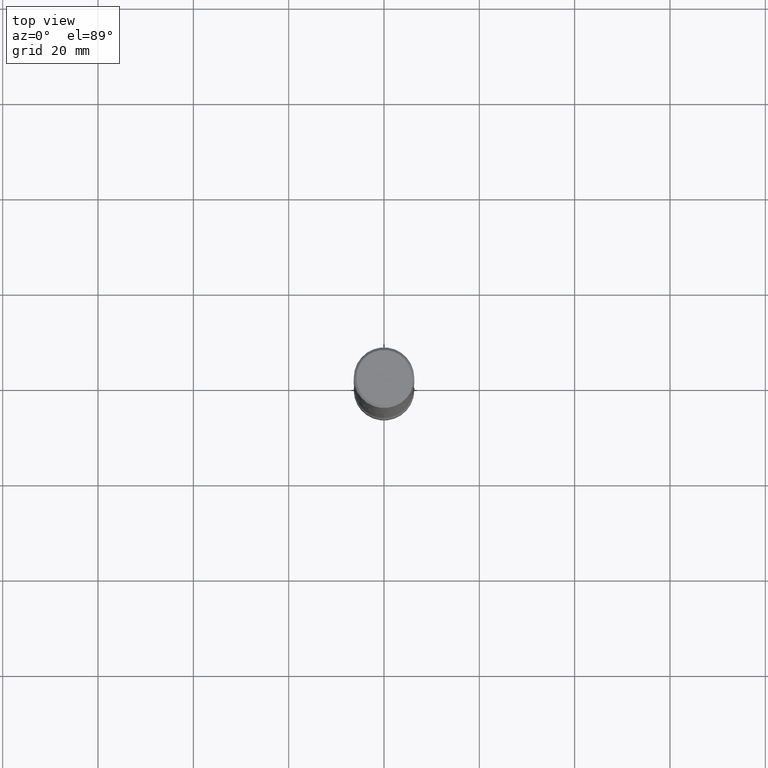
[diagram: clean part render]
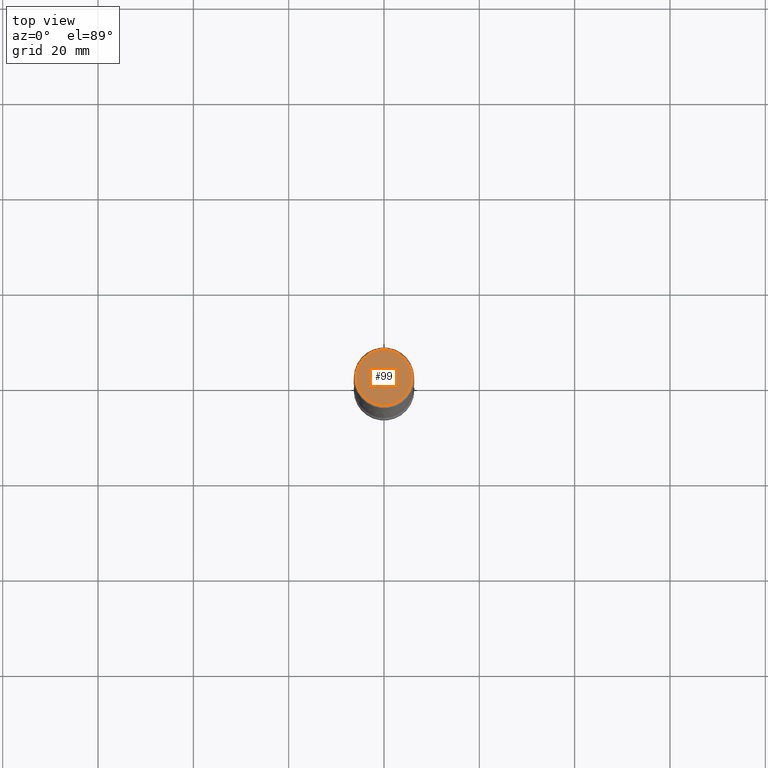
[diagram: same view with one face highlighted and labeled with its STEP entity id]
A machine part, top view. The second image highlights one B-rep face of the part: STEP entity #99.
In plain terms, the highlighted planar face has unit normal (0, -0, -1).
Its self-contained STEP definition (entity closure, byte-faithful):
#33 = DIRECTION ( 'NONE',  ( 1.000000000000000000, -6.982962677686265922E-15, 4.876225828469305518E-29 ) ) ;
#40 = AXIS2_PLACEMENT_3D ( 'NONE', #547, #289, #33 ) ;
#99 = ADVANCED_FACE ( 'NONE', ( #296 ), #162, .F. ) ;
#104 = EDGE_LOOP ( 'NONE', ( #405, #349 ) ) ;
#122 = DIRECTION ( 'NONE',  ( -2.445468806185136597E-29, 3.491481338843145583E-15, 1.000000000000000000 ) ) ;
#135 = VERTEX_POINT ( 'NONE', #165 ) ;
#162 = PLANE ( 'NONE',  #369 ) ;
#163 = DIRECTION ( 'NONE',  ( 1.000000000000000000, -6.982962677686265922E-15, 4.876225828469305518E-29 ) ) ;
#165 = CARTESIAN_POINT ( 'NONE',  ( 0.2300000000000001488, -1.681434332853599997E-15, 4.268512490111905999E-18 ) ) ;
#289 = DIRECTION ( 'NONE',  ( -2.445468806185136597E-29, 3.491481338843145583E-15, 1.000000000000000000 ) ) ;
#296 = FACE_OUTER_BOUND ( 'NONE', #104, .T. ) ;
#349 = ORIENTED_EDGE ( 'NONE', *, *, #440, .T. ) ;
#367 = CARTESIAN_POINT ( 'NONE',  ( 1.606081415867842251E-15, 0.2300000000000001488, -8.009064516888738702E-16 ) ) ;
#369 = AXIS2_PLACEMENT_3D ( 'NONE', #367, #377, #463 ) ;
#377 = DIRECTION ( 'NONE',  ( 2.438088387897960049E-29, -3.491481338843145188E-15, -1.000000000000000000 ) ) ;
#404 = CARTESIAN_POINT ( 'NONE',  ( -1.043851414335219820E-46, 1.490343170380447200E-32, 4.268512490100411279E-18 ) ) ;
#405 = ORIENTED_EDGE ( 'NONE', *, *, #461, .T. ) ;
#409 = VERTEX_POINT ( 'NONE', #460 ) ;
#415 = AXIS2_PLACEMENT_3D ( 'NONE', #404, #122, #163 ) ;
#440 = EDGE_CURVE ( 'NONE', #135, #409, #459, .T. ) ;
#444 = CIRCLE ( 'NONE', #415, 0.2300000000000001488 ) ;
#459 = CIRCLE ( 'NONE', #40, 0.2300000000000001488 ) ;
#460 = CARTESIAN_POINT ( 'NONE',  ( -0.2300000000000001488, 1.640996229256273703E-15, 4.268512490089056766E-18 ) ) ;
#461 = EDGE_CURVE ( 'NONE', #409, #135, #444, .T. ) ;
#463 = DIRECTION ( 'NONE',  ( -1.000000000000000000, 6.982962677686265922E-15, -4.876176775795935793E-29 ) ) ;
#547 = CARTESIAN_POINT ( 'NONE',  ( -1.043851414335219820E-46, 1.490343170380447200E-32, 4.268512490100411279E-18 ) ) ;